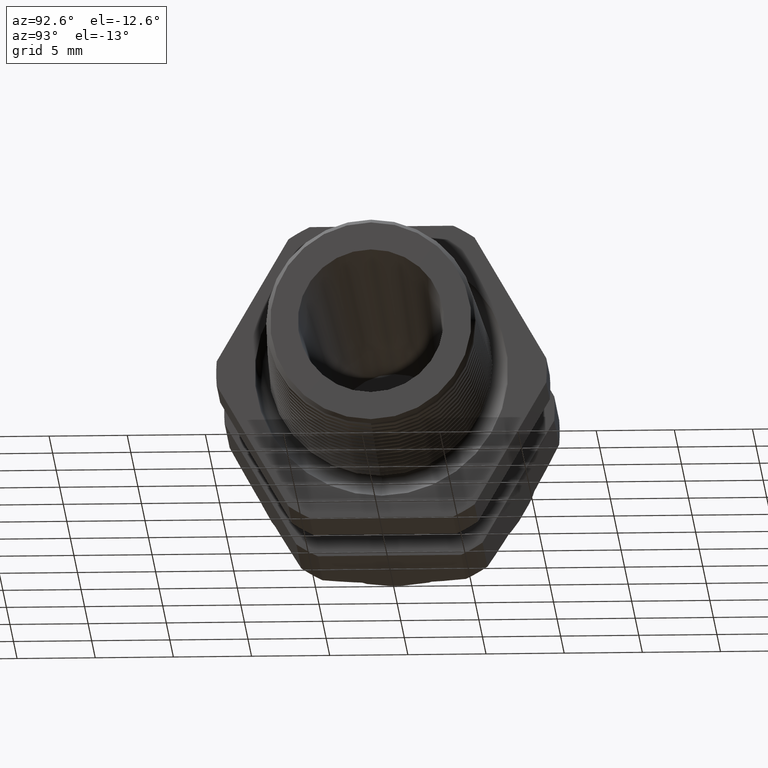
[diagram: clean part render]
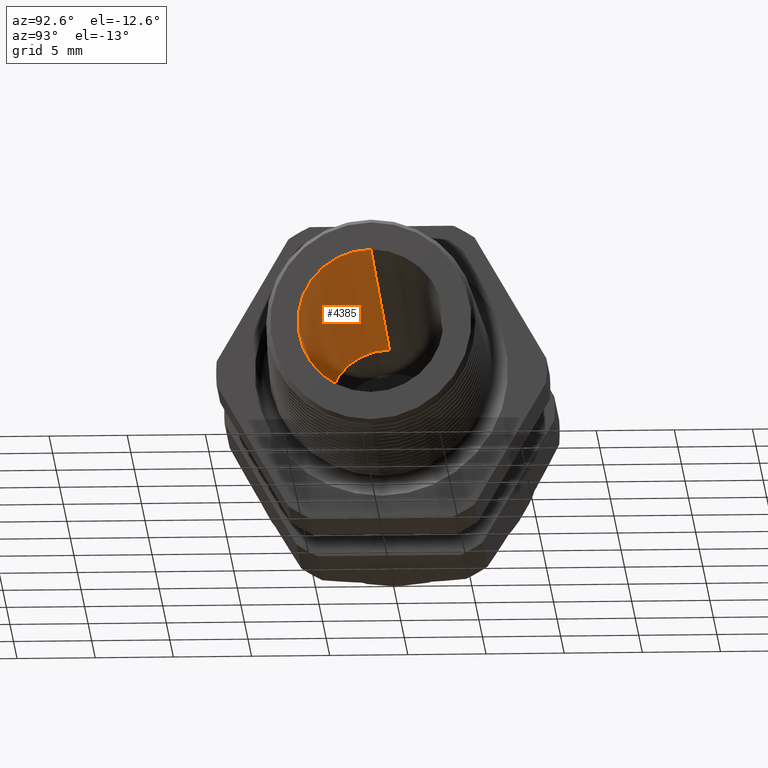
[diagram: same view with one face highlighted and labeled with its STEP entity id]
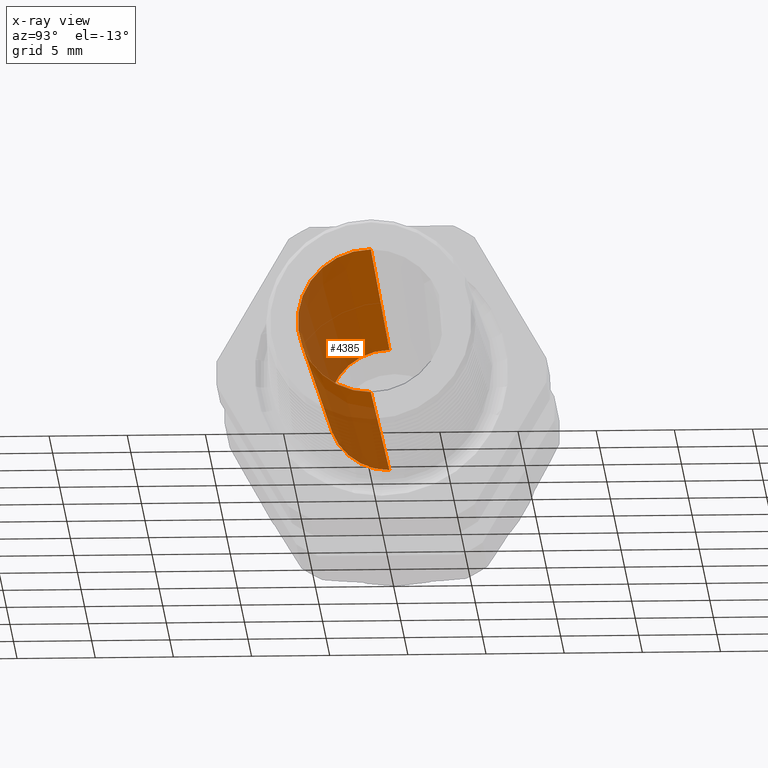
[diagram: x-ray of the same camera — body ghosted, the highlighted face saturated]
A machine part, auxiliary view. The second image highlights one B-rep face of the part: STEP entity #4385.
The next image is the same camera in x-ray: the body ghosted, the highlighted face saturated — about 26% of this face is hidden behind the body in this view.
In plain terms, the highlighted conical surface has half-angle 1.611 deg.
Its self-contained STEP definition (entity closure, byte-faithful):
#1642 = CARTESIAN_POINT ( 'NONE',  ( -0.7508661417322833900, 2.075784658813404700E-017, 0.1550000000000000000 ) ) ;
#1928 = CARTESIAN_POINT ( 'NONE',  ( -0.7508661417322833900, 0.0000000000000000000, -0.1550000000000000000 ) ) ;
#1929 = DIRECTION ( 'NONE',  ( 0.0000000000000000000, 0.0000000000000000000, -1.000000000000000000 ) ) ;
#1930 = DIRECTION ( 'NONE',  ( 1.000000000000000000, 0.0000000000000000000, 0.0000000000000000000 ) ) ;
#1931 = CARTESIAN_POINT ( 'NONE',  ( -0.7508661417322833900, 0.0000000000000000000, 0.0000000000000000000 ) ) ;
#1932 = AXIS2_PLACEMENT_3D ( 'NONE', #1931, #1930, #1929 ) ;
#1933 = CIRCLE ( 'NONE', #1932, 0.1550000000000000000 ) ;
#2159 = DIRECTION ( 'NONE',  ( 0.9996045018004825500, 0.0000000000000000000, -0.02812187725257734400 ) ) ;
#2160 = VECTOR ( 'NONE', #2159, 39.37007874015748900 ) ;
#2161 = CARTESIAN_POINT ( 'NONE',  ( -0.7508661417322833900, 0.0000000000000000000, -0.1550000000000000000 ) ) ;
#2162 = LINE ( 'NONE', #2161, #2160 ) ;
#2163 = CARTESIAN_POINT ( 'NONE',  ( 0.2799999999999999700, 0.0000000000000000000, -0.1840013610877269900 ) ) ;
#2164 = DIRECTION ( 'NONE',  ( 0.0000000000000000000, 0.0000000000000000000, -1.000000000000000000 ) ) ;
#2165 = DIRECTION ( 'NONE',  ( 1.000000000000000000, 0.0000000000000000000, 0.0000000000000000000 ) ) ;
#2166 = CARTESIAN_POINT ( 'NONE',  ( 0.2799999999999999700, 0.0000000000000000000, 0.0000000000000000000 ) ) ;
#2167 = AXIS2_PLACEMENT_3D ( 'NONE', #2166, #2165, #2164 ) ;
#2168 = CIRCLE ( 'NONE', #2167, 0.1840013610877269900 ) ;
#2169 = CARTESIAN_POINT ( 'NONE',  ( 0.2799999999999999700, 2.253366778948412500E-017, 0.1840013610877269900 ) ) ;
#2170 = DIRECTION ( 'NONE',  ( 0.9996045018004825500, 3.443936696338360500E-018, 0.02812187725257734400 ) ) ;
#2171 = VECTOR ( 'NONE', #2170, 39.37007874015748900 ) ;
#2172 = CARTESIAN_POINT ( 'NONE',  ( -0.7508661417322833900, 1.898202538678397300E-017, 0.1550000000000000000 ) ) ;
#2173 = DIRECTION ( 'NONE',  ( 0.0000000000000000000, 0.0000000000000000000, -1.000000000000000000 ) ) ;
#2174 = DIRECTION ( 'NONE',  ( 1.000000000000000000, 0.0000000000000000000, 0.0000000000000000000 ) ) ;
#2175 = CARTESIAN_POINT ( 'NONE',  ( -0.7508661417322833900, 0.0000000000000000000, 0.0000000000000000000 ) ) ;
#2176 = AXIS2_PLACEMENT_3D ( 'NONE', #2175, #2174, #2173 ) ;
#2177 = LINE ( 'NONE', #2172, #2171 ) ;
#2178 = CONICAL_SURFACE ( 'NONE', #2176, 0.1550000000000000000, 0.02812558522312239400 ) ;
#2179 = FACE_OUTER_BOUND ( 'NONE', #4386, .T. ) ;
#4148 = VERTEX_POINT ( 'NONE', #1642 ) ;
#4278 = EDGE_CURVE ( 'NONE', #4148, #4279, #1933, .T. ) ;
#4279 = VERTEX_POINT ( 'NONE', #1928 ) ;
#4385 = ADVANCED_FACE ( 'NONE', ( #2179 ), #2178, .F. ) ;
#4386 = EDGE_LOOP ( 'NONE', ( #4397, #4398, #4389, #4392 ) ) ;
#4387 = EDGE_CURVE ( 'NONE', #4148, #4388, #2177, .T. ) ;
#4388 = VERTEX_POINT ( 'NONE', #2169 ) ;
#4389 = ORIENTED_EDGE ( 'NONE', *, *, #4390, .T. ) ;
#4390 = EDGE_CURVE ( 'NONE', #4388, #4391, #2168, .T. ) ;
#4391 = VERTEX_POINT ( 'NONE', #2163 ) ;
#4392 = ORIENTED_EDGE ( 'NONE', *, *, #4393, .F. ) ;
#4393 = EDGE_CURVE ( 'NONE', #4279, #4391, #2162, .T. ) ;
#4397 = ORIENTED_EDGE ( 'NONE', *, *, #4278, .F. ) ;
#4398 = ORIENTED_EDGE ( 'NONE', *, *, #4387, .T. ) ;